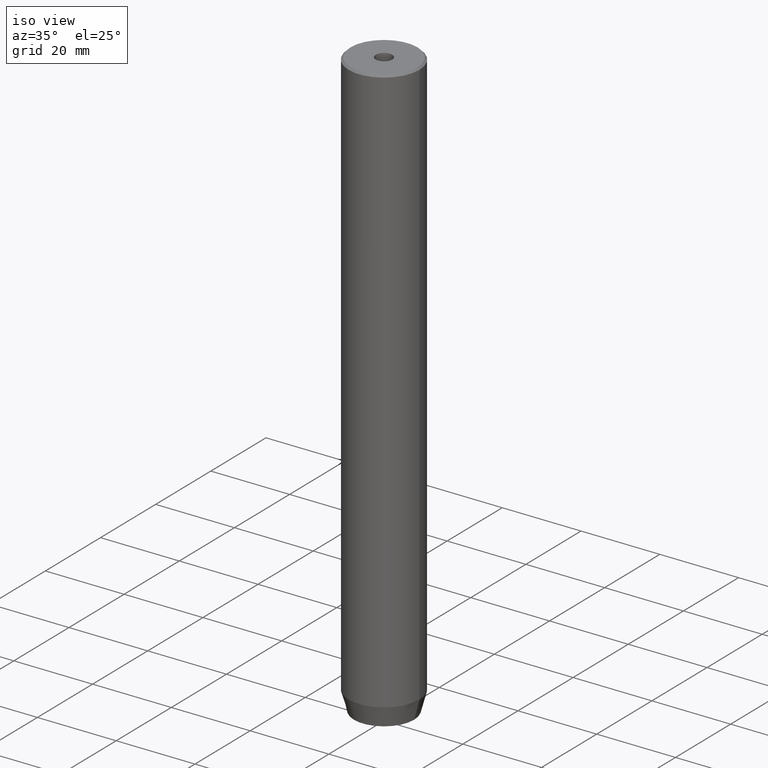
[diagram: clean part render]
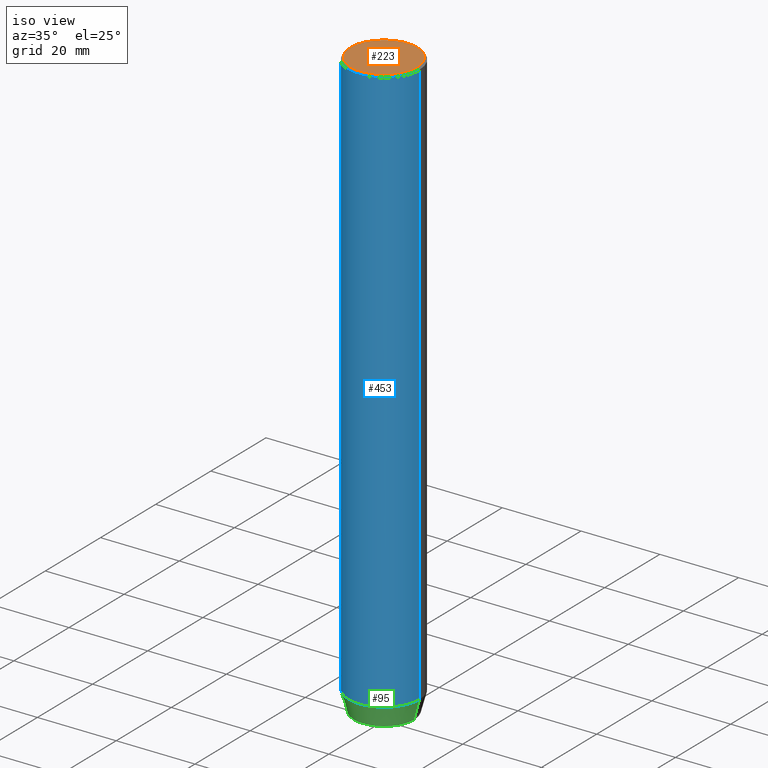
[diagram: same view with three faces highlighted in distinct colors, each labeled with its STEP entity id]
A machine part, iso view with three faces highlighted in distinct colors.
Their STEP definitions:

[orange] entity #223 — the highlighted planar face has unit normal (0, -0, 1).
#8 = VERTEX_POINT ( 'NONE', #304 ) ;
#19 = PLANE ( 'NONE',  #461 ) ;
#64 = EDGE_LOOP ( 'NONE', ( #135, #120 ) ) ;
#77 = CARTESIAN_POINT ( 'NONE',  ( 0.000000000000000000, 0.000000000000000000, 0.000000000000000000 ) ) ;
#78 = ORIENTED_EDGE ( 'NONE', *, *, #490, .F. ) ;
#120 = ORIENTED_EDGE ( 'NONE', *, *, #253, .T. ) ;
#135 = ORIENTED_EDGE ( 'NONE', *, *, #385, .T. ) ;
#155 = FACE_BOUND ( 'NONE', #175, .T. ) ;
#175 = EDGE_LOOP ( 'NONE', ( #78, #314 ) ) ;
#176 = CARTESIAN_POINT ( 'NONE',  ( 8.500000000000007105, 1.071565949253934321E-15, 0.000000000000000000 ) ) ;
#182 = CIRCLE ( 'NONE', #257, 2.099999999999998757 ) ;
#199 = DIRECTION ( 'NONE',  ( -0.000000000000000000, -0.000000000000000000, 1.000000000000000000 ) ) ;
#203 = CARTESIAN_POINT ( 'NONE',  ( 0.000000000000000000, 0.000000000000000000, -1.990051048614449116E-16 ) ) ;
#206 = CARTESIAN_POINT ( 'NONE',  ( -2.099999999999998757, 2.571758278209440478E-16, -1.990051048614449116E-16 ) ) ;
#210 = DIRECTION ( 'NONE',  ( -0.000000000000000000, -0.000000000000000000, 1.000000000000000000 ) ) ;
#214 = DIRECTION ( 'NONE',  ( -0.000000000000000000, -0.000000000000000000, 1.000000000000000000 ) ) ;
#221 = CIRCLE ( 'NONE', #292, 2.099999999999998757 ) ;
#223 = ADVANCED_FACE ( 'NONE', ( #155, #564 ), #19, .T. ) ;
#249 = CARTESIAN_POINT ( 'NONE',  ( 0.000000000000000000, 0.000000000000000000, 0.000000000000000000 ) ) ;
#253 = EDGE_CURVE ( 'NONE', #476, #8, #583, .T. ) ;
#257 = AXIS2_PLACEMENT_3D ( 'NONE', #450, #214, #325 ) ;
#258 = DIRECTION ( 'NONE',  ( 1.000000000000000000, 0.000000000000000000, 0.000000000000000000 ) ) ;
#260 = DIRECTION ( 'NONE',  ( 1.000000000000000000, 0.000000000000000000, 0.000000000000000000 ) ) ;
#271 = EDGE_CURVE ( 'NONE', #301, #526, #221, .T. ) ;
#292 = AXIS2_PLACEMENT_3D ( 'NONE', #203, #210, #419 ) ;
#301 = VERTEX_POINT ( 'NONE', #206 ) ;
#304 = CARTESIAN_POINT ( 'NONE',  ( -8.500000000000007105, 0.000000000000000000, 0.000000000000000000 ) ) ;
#314 = ORIENTED_EDGE ( 'NONE', *, *, #271, .F. ) ;
#325 = DIRECTION ( 'NONE',  ( 1.000000000000000000, 0.000000000000000000, 0.000000000000000000 ) ) ;
#351 = DIRECTION ( 'NONE',  ( -0.000000000000000000, -0.000000000000000000, 1.000000000000000000 ) ) ;
#360 = AXIS2_PLACEMENT_3D ( 'NONE', #530, #351, #260 ) ;
#379 = DIRECTION ( 'NONE',  ( 0.000000000000000000, -0.000000000000000000, 1.000000000000000000 ) ) ;
#385 = EDGE_CURVE ( 'NONE', #8, #476, #470, .T. ) ;
#411 = AXIS2_PLACEMENT_3D ( 'NONE', #249, #199, #425 ) ;
#419 = DIRECTION ( 'NONE',  ( 1.000000000000000000, 0.000000000000000000, 0.000000000000000000 ) ) ;
#425 = DIRECTION ( 'NONE',  ( 1.000000000000000000, 0.000000000000000000, 0.000000000000000000 ) ) ;
#450 = CARTESIAN_POINT ( 'NONE',  ( 0.000000000000000000, 0.000000000000000000, -1.990051048614449116E-16 ) ) ;
#461 = AXIS2_PLACEMENT_3D ( 'NONE', #77, #379, #258 ) ;
#470 = CIRCLE ( 'NONE', #360, 8.500000000000007105 ) ;
#476 = VERTEX_POINT ( 'NONE', #176 ) ;
#490 = EDGE_CURVE ( 'NONE', #526, #301, #182, .T. ) ;
#526 = VERTEX_POINT ( 'NONE', #546 ) ;
#530 = CARTESIAN_POINT ( 'NONE',  ( 0.000000000000000000, 0.000000000000000000, 0.000000000000000000 ) ) ;
#546 = CARTESIAN_POINT ( 'NONE',  ( 2.099999999999998757, 0.000000000000000000, -1.990051048614449116E-16 ) ) ;
#564 = FACE_OUTER_BOUND ( 'NONE', #64, .T. ) ;
#583 = CIRCLE ( 'NONE', #411, 8.500000000000007105 ) ;

[blue] entity #453 — the highlighted cylindrical surface (partial cylindrical patch) has radius 9 mm, axis along (-0, -0, 1).
#6 = VECTOR ( 'NONE', #150, 1000.000000000000000 ) ;
#20 = CIRCLE ( 'NONE', #327, 9.000000000000000000 ) ;
#32 = VERTEX_POINT ( 'NONE', #456 ) ;
#43 = DIRECTION ( 'NONE',  ( -0.000000000000000000, -0.000000000000000000, 1.000000000000000000 ) ) ;
#80 = EDGE_CURVE ( 'NONE', #469, #178, #506, .T. ) ;
#106 = CARTESIAN_POINT ( 'NONE',  ( 0.000000000000000000, 0.000000000000000000, -0.4999999999999813483 ) ) ;
#115 = ORIENTED_EDGE ( 'NONE', *, *, #498, .T. ) ;
#124 = ORIENTED_EDGE ( 'NONE', *, *, #505, .T. ) ;
#131 = CARTESIAN_POINT ( 'NONE',  ( 0.000000000000000000, 0.000000000000000000, -144.9999999999999716 ) ) ;
#146 = DIRECTION ( 'NONE',  ( -0.000000000000000000, -0.000000000000000000, 1.000000000000000000 ) ) ;
#150 = DIRECTION ( 'NONE',  ( -0.000000000000000000, -0.000000000000000000, 1.000000000000000000 ) ) ;
#153 = LINE ( 'NONE', #466, #6 ) ;
#156 = ORIENTED_EDGE ( 'NONE', *, *, #477, .T. ) ;
#178 = VERTEX_POINT ( 'NONE', #232 ) ;
#224 = DIRECTION ( 'NONE',  ( 1.000000000000000000, 0.000000000000000000, 0.000000000000000000 ) ) ;
#232 = CARTESIAN_POINT ( 'NONE',  ( -9.000000000000000000, 1.102182119232617714E-15, -0.4999999999999813483 ) ) ;
#247 = DIRECTION ( 'NONE',  ( 1.000000000000000000, 0.000000000000000000, 0.000000000000000000 ) ) ;
#263 = FACE_OUTER_BOUND ( 'NONE', #298, .T. ) ;
#298 = EDGE_LOOP ( 'NONE', ( #516, #156, #115, #124 ) ) ;
#302 = AXIS2_PLACEMENT_3D ( 'NONE', #442, #43, #224 ) ;
#312 = DIRECTION ( 'NONE',  ( -0.000000000000000000, -0.000000000000000000, 1.000000000000000000 ) ) ;
#327 = AXIS2_PLACEMENT_3D ( 'NONE', #106, #553, #247 ) ;
#387 = VERTEX_POINT ( 'NONE', #448 ) ;
#393 = CYLINDRICAL_SURFACE ( 'NONE', #302, 9.000000000000000000 ) ;
#402 = CARTESIAN_POINT ( 'NONE',  ( -9.000000000000000000, 1.102182119232617714E-15, -144.9999999999999716 ) ) ;
#421 = VECTOR ( 'NONE', #146, 1000.000000000000000 ) ;
#442 = CARTESIAN_POINT ( 'NONE',  ( 0.000000000000000000, 0.000000000000000000, 0.000000000000000000 ) ) ;
#448 = CARTESIAN_POINT ( 'NONE',  ( 9.000000000000000000, 0.000000000000000000, -0.4999999999999813483 ) ) ;
#452 = CIRCLE ( 'NONE', #510, 9.000000000000000000 ) ;
#453 = ADVANCED_FACE ( 'NONE', ( #263 ), #393, .T. ) ;
#456 = CARTESIAN_POINT ( 'NONE',  ( 9.000000000000000000, 0.000000000000000000, -144.9999999999999716 ) ) ;
#466 = CARTESIAN_POINT ( 'NONE',  ( 9.000000000000000000, 0.000000000000000000, 0.000000000000000000 ) ) ;
#469 = VERTEX_POINT ( 'NONE', #402 ) ;
#477 = EDGE_CURVE ( 'NONE', #469, #32, #452, .T. ) ;
#494 = DIRECTION ( 'NONE',  ( 1.000000000000000000, 0.000000000000000000, 0.000000000000000000 ) ) ;
#498 = EDGE_CURVE ( 'NONE', #32, #387, #153, .T. ) ;
#505 = EDGE_CURVE ( 'NONE', #387, #178, #20, .T. ) ;
#506 = LINE ( 'NONE', #554, #421 ) ;
#510 = AXIS2_PLACEMENT_3D ( 'NONE', #131, #312, #494 ) ;
#516 = ORIENTED_EDGE ( 'NONE', *, *, #80, .F. ) ;
#553 = DIRECTION ( 'NONE',  ( 0.000000000000000000, 0.000000000000000000, -1.000000000000000000 ) ) ;
#554 = CARTESIAN_POINT ( 'NONE',  ( -9.000000000000000000, 1.102182119232617714E-15, 0.000000000000000000 ) ) ;

[green] entity #95 — the highlighted conical surface has half-angle 15 deg.
#1 = CARTESIAN_POINT ( 'NONE',  ( -9.000000000000000000, 1.102182119232617714E-15, -144.9999999999999716 ) ) ;
#9 = DIRECTION ( 'NONE',  ( 1.000000000000000000, 0.000000000000000000, 0.000000000000000000 ) ) ;
#32 = VERTEX_POINT ( 'NONE', #456 ) ;
#33 = AXIS2_PLACEMENT_3D ( 'NONE', #143, #324, #390 ) ;
#95 = ADVANCED_FACE ( 'NONE', ( #454 ), #520, .T. ) ;
#119 = CARTESIAN_POINT ( 'NONE',  ( -7.660254037844373087, 1.020146339021393680E-15, -150.0000000000000000 ) ) ;
#131 = CARTESIAN_POINT ( 'NONE',  ( 0.000000000000000000, 0.000000000000000000, -144.9999999999999716 ) ) ;
#132 = ORIENTED_EDGE ( 'NONE', *, *, #144, .T. ) ;
#137 = DIRECTION ( 'NONE',  ( 0.2588190451025214056, 0.000000000000000000, 0.9659258262890680902 ) ) ;
#143 = CARTESIAN_POINT ( 'NONE',  ( 0.000000000000000000, 0.000000000000000000, -150.0000000000000000 ) ) ;
#144 = EDGE_CURVE ( 'NONE', #294, #32, #319, .T. ) ;
#151 = CARTESIAN_POINT ( 'NONE',  ( 7.660254037844373087, 0.000000000000000000, -150.0000000000000000 ) ) ;
#171 = CIRCLE ( 'NONE', #33, 7.660254037844373087 ) ;
#189 = VECTOR ( 'NONE', #486, 1000.000000000000000 ) ;
#191 = EDGE_CURVE ( 'NONE', #252, #294, #171, .T. ) ;
#194 = CARTESIAN_POINT ( 'NONE',  ( 0.000000000000000000, 0.000000000000000000, -144.9999999999999716 ) ) ;
#218 = ORIENTED_EDGE ( 'NONE', *, *, #413, .F. ) ;
#252 = VERTEX_POINT ( 'NONE', #119 ) ;
#278 = DIRECTION ( 'NONE',  ( -0.000000000000000000, -0.000000000000000000, 1.000000000000000000 ) ) ;
#294 = VERTEX_POINT ( 'NONE', #151 ) ;
#312 = DIRECTION ( 'NONE',  ( -0.000000000000000000, -0.000000000000000000, 1.000000000000000000 ) ) ;
#319 = LINE ( 'NONE', #323, #321 ) ;
#321 = VECTOR ( 'NONE', #137, 1000.000000000000000 ) ;
#323 = CARTESIAN_POINT ( 'NONE',  ( 9.000000000000000000, 0.000000000000000000, -144.9999999999999716 ) ) ;
#324 = DIRECTION ( 'NONE',  ( -0.000000000000000000, -0.000000000000000000, 1.000000000000000000 ) ) ;
#337 = EDGE_LOOP ( 'NONE', ( #218, #341, #132, #420 ) ) ;
#341 = ORIENTED_EDGE ( 'NONE', *, *, #191, .T. ) ;
#390 = DIRECTION ( 'NONE',  ( 1.000000000000000000, 0.000000000000000000, 0.000000000000000000 ) ) ;
#402 = CARTESIAN_POINT ( 'NONE',  ( -9.000000000000000000, 1.102182119232617714E-15, -144.9999999999999716 ) ) ;
#413 = EDGE_CURVE ( 'NONE', #252, #469, #580, .T. ) ;
#420 = ORIENTED_EDGE ( 'NONE', *, *, #477, .F. ) ;
#452 = CIRCLE ( 'NONE', #510, 9.000000000000000000 ) ;
#454 = FACE_OUTER_BOUND ( 'NONE', #337, .T. ) ;
#456 = CARTESIAN_POINT ( 'NONE',  ( 9.000000000000000000, 0.000000000000000000, -144.9999999999999716 ) ) ;
#469 = VERTEX_POINT ( 'NONE', #402 ) ;
#477 = EDGE_CURVE ( 'NONE', #469, #32, #452, .T. ) ;
#486 = DIRECTION ( 'NONE',  ( -0.2588190451025214056, 3.169619151431772953E-17, 0.9659258262890680902 ) ) ;
#494 = DIRECTION ( 'NONE',  ( 1.000000000000000000, 0.000000000000000000, 0.000000000000000000 ) ) ;
#510 = AXIS2_PLACEMENT_3D ( 'NONE', #131, #312, #494 ) ;
#520 = CONICAL_SURFACE ( 'NONE', #532, 9.000000000000000000, 0.2617993877991501295 ) ;
#532 = AXIS2_PLACEMENT_3D ( 'NONE', #194, #278, #9 ) ;
#580 = LINE ( 'NONE', #1, #189 ) ;